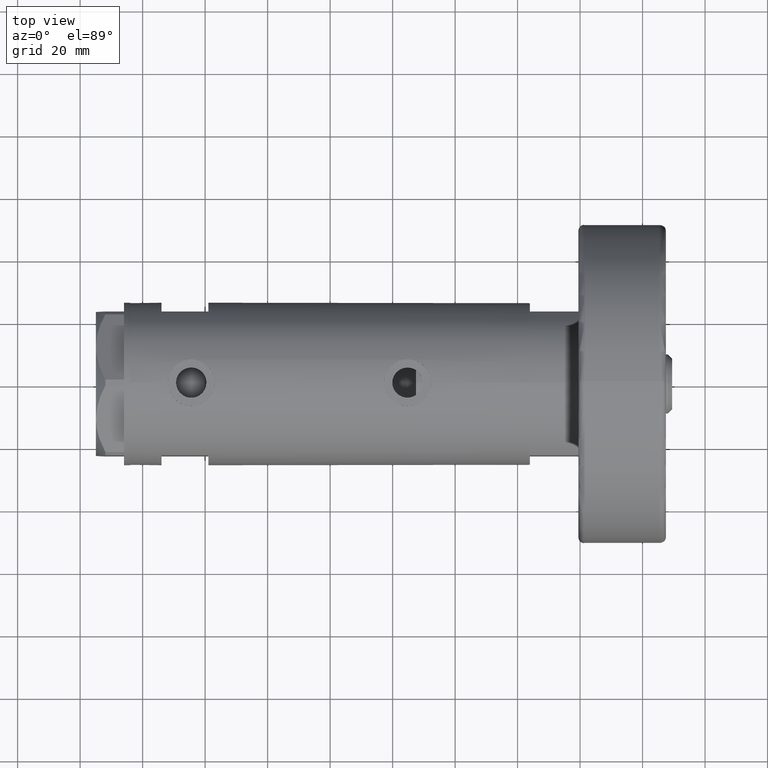
[diagram: clean part render]
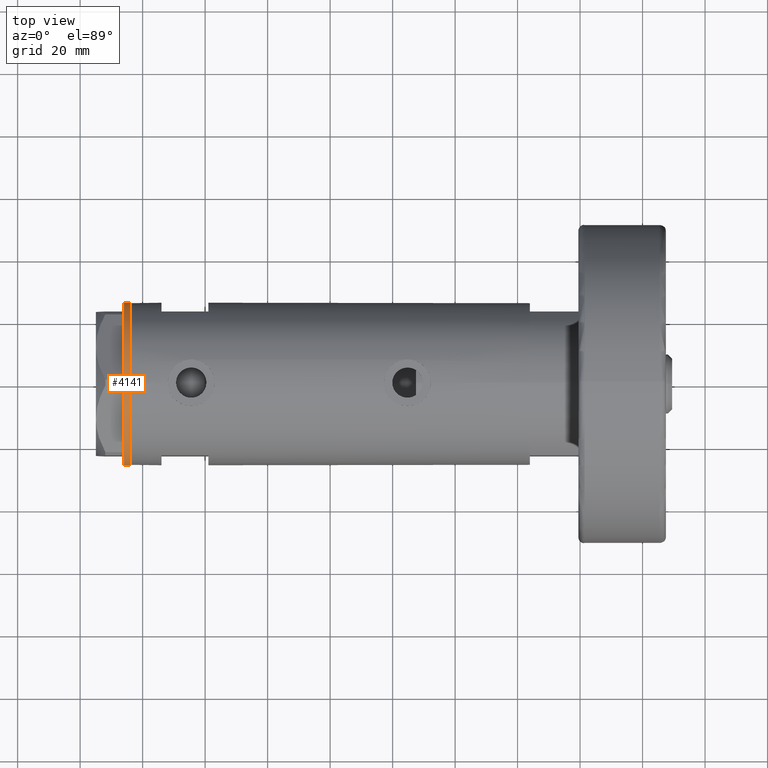
[diagram: same view with one face highlighted and labeled with its STEP entity id]
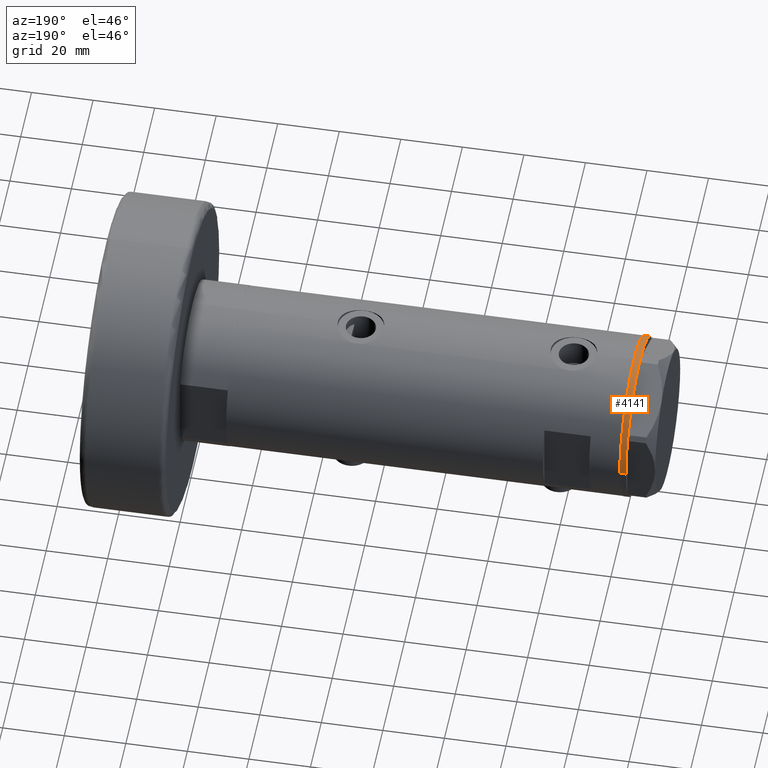
[diagram: same view with one face highlighted and labeled with its STEP entity id]
A machine part, top view. The second image highlights one B-rep face of the part: STEP entity #4141.
A second angle (auxiliary view) of the same face is appended — the face is thin or edge-on in the first view.
In plain terms, the highlighted cylindrical surface (partial cylindrical patch) has radius 26 mm, axis along (-1, -0, 0).
Its self-contained STEP definition (entity closure, byte-faithful):
#17 = CARTESIAN_POINT ( 'NONE',  ( -26.00000000000000355, 3.184081677783118585E-15, 0.000000000000000000 ) ) ;
#204 = B_SPLINE_CURVE_WITH_KNOTS ( 'NONE', 3,
 ( #4038, #3646, #1623, #1326 ),
 .UNSPECIFIED., .F., .F.,
 ( 4, 4 ),
 ( 0.000000000000000000, 1.000000000000000000 ),
 .UNSPECIFIED. ) ;
#308 = ORIENTED_EDGE ( 'NONE', *, *, #1981, .T. ) ;
#327 = CARTESIAN_POINT ( 'NONE',  ( 0.000000000000000000, 0.000000000000000000, -2.000000000000000000 ) ) ;
#399 = VERTEX_POINT ( 'NONE', #17 ) ;
#419 = CIRCLE ( 'NONE', #4240, 26.00000000000000355 ) ;
#448 = CARTESIAN_POINT ( 'NONE',  ( -22.99999999999990763, -12.12435565298232021, 0.000000000000000000 ) ) ;
#472 = DIRECTION ( 'NONE',  ( -1.000000000000000000, 0.000000000000000000, 0.000000000000000000 ) ) ;
#476 = CARTESIAN_POINT ( 'NONE',  ( 22.67167229899274616, -12.72773645103814211, 0.000000000000000000 ) ) ;
#505 = CARTESIAN_POINT ( 'NONE',  ( 26.00000000000000355, 0.000000000000000000, -2.000000000000000000 ) ) ;
#552 = DIRECTION ( 'NONE',  ( -1.000000000000000000, 0.000000000000000000, 0.000000000000000000 ) ) ;
#613 = CARTESIAN_POINT ( 'NONE',  ( 0.000000000000000000, 0.000000000000000000, 0.000000000000000000 ) ) ;
#645 = EDGE_CURVE ( 'NONE', #2921, #3982, #1268, .T. ) ;
#650 = ORIENTED_EDGE ( 'NONE', *, *, #1889, .T. ) ;
#710 = CARTESIAN_POINT ( 'NONE',  ( -0.3132930502238524539, -25.99811238272274139, 0.000000000000000000 ) ) ;
#778 = ORIENTED_EDGE ( 'NONE', *, *, #2307, .T. ) ;
#936 = DIRECTION ( 'NONE',  ( 1.000000000000000000, 0.000000000000000000, 0.000000000000000000 ) ) ;
#1012 = EDGE_CURVE ( 'NONE', #1127, #4639, #4734, .T. ) ;
#1077 = DIRECTION ( 'NONE',  ( 0.000000000000000000, 0.000000000000000000, -1.000000000000000000 ) ) ;
#1104 = AXIS2_PLACEMENT_3D ( 'NONE', #1608, #4446, #2899 ) ;
#1119 = CARTESIAN_POINT ( 'NONE',  ( 0.3132930502243174709, -25.99811238272273428, 0.000000000000000000 ) ) ;
#1127 = VERTEX_POINT ( 'NONE', #1338 ) ;
#1130 = EDGE_CURVE ( 'NONE', #4350, #399, #4972, .T. ) ;
#1180 = CIRCLE ( 'NONE', #4738, 26.00000000000000355 ) ;
#1208 = DIRECTION ( 'NONE',  ( 0.000000000000000000, 0.000000000000000000, -1.000000000000000000 ) ) ;
#1268 = B_SPLINE_CURVE_WITH_KNOTS ( 'NONE', 3,
 ( #1119, #2726, #5198, #710 ),
 .UNSPECIFIED., .F., .F.,
 ( 4, 4 ),
 ( 0.000000000000000000, 1.000000000000000000 ),
 .UNSPECIFIED. ) ;
#1326 = CARTESIAN_POINT ( 'NONE',  ( -22.67167229899264669, -12.72773645103832507, 0.000000000000000000 ) ) ;
#1338 = CARTESIAN_POINT ( 'NONE',  ( -0.9999999999997406519, -25.98076211353317433, 0.000000000000000000 ) ) ;
#1401 = DIRECTION ( 'NONE',  ( 0.000000000000000000, 0.000000000000000000, -1.000000000000000000 ) ) ;
#1433 = CARTESIAN_POINT ( 'NONE',  ( 22.67167229899274616, -12.72773645103814211, 0.000000000000000000 ) ) ;
#1435 = CARTESIAN_POINT ( 'NONE',  ( 0.000000000000000000, 0.000000000000000000, 0.000000000000000000 ) ) ;
#1474 = DIRECTION ( 'NONE',  ( -1.000000000000000000, 0.000000000000000000, 0.000000000000000000 ) ) ;
#1561 = ORIENTED_EDGE ( 'NONE', *, *, #4282, .T. ) ;
#1608 = CARTESIAN_POINT ( 'NONE',  ( 0.000000000000000000, 0.000000000000000000, 0.000000000000000000 ) ) ;
#1617 = CIRCLE ( 'NONE', #3502, 26.00000000000000355 ) ;
#1623 = CARTESIAN_POINT ( 'NONE',  ( -22.56942594318098116, -12.90986591935703665, 0.000000000000000000 ) ) ;
#1666 = VERTEX_POINT ( 'NONE', #448 ) ;
#1691 = AXIS2_PLACEMENT_3D ( 'NONE', #3326, #3000, #936 ) ;
#1707 = EDGE_CURVE ( 'NONE', #3982, #1127, #4905, .T. ) ;
#1728 = ORIENTED_EDGE ( 'NONE', *, *, #3110, .T. ) ;
#1743 = CARTESIAN_POINT ( 'NONE',  ( -26.00000000000000355, 3.184081677783118585E-15, -2.000000000000000000 ) ) ;
#1764 = VERTEX_POINT ( 'NONE', #2908 ) ;
#1868 = VERTEX_POINT ( 'NONE', #4760 ) ;
#1884 = AXIS2_PLACEMENT_3D ( 'NONE', #5033, #1401, #3007 ) ;
#1889 = EDGE_CURVE ( 'NONE', #1666, #399, #1180, .T. ) ;
#1897 = ORIENTED_EDGE ( 'NONE', *, *, #1130, .F. ) ;
#1907 = ORIENTED_EDGE ( 'NONE', *, *, #3920, .T. ) ;
#1981 = EDGE_CURVE ( 'NONE', #1868, #1764, #204, .T. ) ;
#2052 = AXIS2_PLACEMENT_3D ( 'NONE', #4613, #4679, #4260 ) ;
#2075 = EDGE_CURVE ( 'NONE', #3360, #3889, #419, .T. ) ;
#2116 = CARTESIAN_POINT ( 'NONE',  ( 22.35837924876884131, -13.27037593168418717, 0.000000000000000000 ) ) ;
#2157 = ORIENTED_EDGE ( 'NONE', *, *, #645, .T. ) ;
#2186 = DIRECTION ( 'NONE',  ( -1.000000000000000000, 0.000000000000000000, 0.000000000000000000 ) ) ;
#2246 = DIRECTION ( 'NONE',  ( -1.000000000000000000, 0.000000000000000000, 0.000000000000000000 ) ) ;
#2271 = DIRECTION ( 'NONE',  ( -0.000000000000000000, -0.000000000000000000, 1.000000000000000000 ) ) ;
#2306 = DIRECTION ( 'NONE',  ( -1.000000000000000000, 0.000000000000000000, 0.000000000000000000 ) ) ;
#2307 = EDGE_CURVE ( 'NONE', #4198, #2404, #4369, .T. ) ;
#2314 = AXIS2_PLACEMENT_3D ( 'NONE', #2965, #4194, #2186 ) ;
#2404 = VERTEX_POINT ( 'NONE', #3875 ) ;
#2533 = CARTESIAN_POINT ( 'NONE',  ( 22.56942594318113748, -12.90986591935675065, 0.000000000000000000 ) ) ;
#2566 = CARTESIAN_POINT ( 'NONE',  ( 22.46498481720470863, -13.09076325594764079, 0.000000000000000000 ) ) ;
#2573 = CARTESIAN_POINT ( 'NONE',  ( 22.00000000000017053, -13.85640646055075464, 0.000000000000000000 ) ) ;
#2590 = ORIENTED_EDGE ( 'NONE', *, *, #4556, .T. ) ;
#2609 = ORIENTED_EDGE ( 'NONE', *, *, #4969, .T. ) ;
#2625 = ORIENTED_EDGE ( 'NONE', *, *, #3267, .T. ) ;
#2716 = AXIS2_PLACEMENT_3D ( 'NONE', #327, #1077, #3443 ) ;
#2726 = CARTESIAN_POINT ( 'NONE',  ( 0.1044411259767168837, -26.00062917530480888, 0.000000000000000000 ) ) ;
#2759 = EDGE_CURVE ( 'NONE', #3889, #2921, #4068, .T. ) ;
#2786 = EDGE_LOOP ( 'NONE', ( #1897, #2949, #1561, #1907, #2625, #778, #2590, #5121, #3833, #2157, #3367, #5192, #1728, #308, #2609, #650 ) ) ;
#2816 = CARTESIAN_POINT ( 'NONE',  ( -0.3132930502238524539, -25.99811238272274139, 0.000000000000000000 ) ) ;
#2899 = DIRECTION ( 'NONE',  ( -1.000000000000000000, 0.000000000000000000, 0.000000000000000000 ) ) ;
#2908 = CARTESIAN_POINT ( 'NONE',  ( -22.67167229899264669, -12.72773645103832507, 0.000000000000000000 ) ) ;
#2921 = VERTEX_POINT ( 'NONE', #3449 ) ;
#2924 = CARTESIAN_POINT ( 'NONE',  ( 26.00000000000000355, 0.000000000000000000, 0.000000000000000000 ) ) ;
#2949 = ORIENTED_EDGE ( 'NONE', *, *, #4381, .F. ) ;
#2965 = CARTESIAN_POINT ( 'NONE',  ( 0.000000000000000000, 0.000000000000000000, 0.000000000000000000 ) ) ;
#3000 = DIRECTION ( 'NONE',  ( -0.000000000000000000, -0.000000000000000000, 1.000000000000000000 ) ) ;
#3007 = DIRECTION ( 'NONE',  ( -1.000000000000000000, 0.000000000000000000, 0.000000000000000000 ) ) ;
#3110 = EDGE_CURVE ( 'NONE', #4639, #1868, #5107, .T. ) ;
#3138 = CIRCLE ( 'NONE', #2716, 26.00000000000000355 ) ;
#3162 = DIRECTION ( 'NONE',  ( 0.000000000000000000, 0.000000000000000000, -1.000000000000000000 ) ) ;
#3267 = EDGE_CURVE ( 'NONE', #4483, #4198, #1617, .T. ) ;
#3326 = CARTESIAN_POINT ( 'NONE',  ( 0.000000000000000000, 0.000000000000000000, -2.000000000000000000 ) ) ;
#3360 = VERTEX_POINT ( 'NONE', #2573 ) ;
#3367 = ORIENTED_EDGE ( 'NONE', *, *, #1707, .T. ) ;
#3371 = DIRECTION ( 'NONE',  ( 0.000000000000000000, 0.000000000000000000, -1.000000000000000000 ) ) ;
#3407 = AXIS2_PLACEMENT_3D ( 'NONE', #1435, #4605, #552 ) ;
#3443 = DIRECTION ( 'NONE',  ( -1.000000000000000000, 0.000000000000000000, 0.000000000000000000 ) ) ;
#3449 = CARTESIAN_POINT ( 'NONE',  ( 0.3132930502243174709, -25.99811238272273428, 0.000000000000000000 ) ) ;
#3502 = AXIS2_PLACEMENT_3D ( 'NONE', #4112, #3701, #472 ) ;
#3600 = VERTEX_POINT ( 'NONE', #2924 ) ;
#3646 = CARTESIAN_POINT ( 'NONE',  ( -22.46498481720448481, -13.09076325594801915, 0.000000000000000000 ) ) ;
#3651 = AXIS2_PLACEMENT_3D ( 'NONE', #3997, #1208, #4091 ) ;
#3701 = DIRECTION ( 'NONE',  ( 0.000000000000000000, 0.000000000000000000, -1.000000000000000000 ) ) ;
#3833 = ORIENTED_EDGE ( 'NONE', *, *, #2759, .T. ) ;
#3875 = CARTESIAN_POINT ( 'NONE',  ( 22.35837924876884131, -13.27037593168418717, 0.000000000000000000 ) ) ;
#3889 = VERTEX_POINT ( 'NONE', #4807 ) ;
#3920 = EDGE_CURVE ( 'NONE', #3600, #4483, #4658, .T. ) ;
#3982 = VERTEX_POINT ( 'NONE', #2816 ) ;
#3985 = AXIS2_PLACEMENT_3D ( 'NONE', #613, #3371, #2246 ) ;
#3997 = CARTESIAN_POINT ( 'NONE',  ( 0.000000000000000000, 0.000000000000000000, 0.000000000000000000 ) ) ;
#4038 = CARTESIAN_POINT ( 'NONE',  ( -22.35837924876856064, -13.27037593168466501, 0.000000000000000000 ) ) ;
#4056 = VERTEX_POINT ( 'NONE', #505 ) ;
#4059 = CARTESIAN_POINT ( 'NONE',  ( 23.00000000000007461, -12.12435565298200224, 0.000000000000000000 ) ) ;
#4068 = CIRCLE ( 'NONE', #1884, 26.00000000000000355 ) ;
#4091 = DIRECTION ( 'NONE',  ( -1.000000000000000000, 0.000000000000000000, 0.000000000000000000 ) ) ;
#4112 = CARTESIAN_POINT ( 'NONE',  ( 0.000000000000000000, 0.000000000000000000, 0.000000000000000000 ) ) ;
#4115 = CYLINDRICAL_SURFACE ( 'NONE', #1691, 26.00000000000000355 ) ;
#4141 = ADVANCED_FACE ( 'NONE', ( #4561 ), #4115, .T. ) ;
#4194 = DIRECTION ( 'NONE',  ( 0.000000000000000000, 0.000000000000000000, -1.000000000000000000 ) ) ;
#4198 = VERTEX_POINT ( 'NONE', #476 ) ;
#4208 = DIRECTION ( 'NONE',  ( -0.000000000000000000, -0.000000000000000000, 1.000000000000000000 ) ) ;
#4240 = AXIS2_PLACEMENT_3D ( 'NONE', #5178, #5131, #1474 ) ;
#4260 = DIRECTION ( 'NONE',  ( -1.000000000000000000, 0.000000000000000000, 0.000000000000000000 ) ) ;
#4261 = CIRCLE ( 'NONE', #2052, 26.00000000000000355 ) ;
#4282 = EDGE_CURVE ( 'NONE', #4056, #3600, #5116, .T. ) ;
#4286 = CARTESIAN_POINT ( 'NONE',  ( 26.00000000000000355, 0.000000000000000000, -2.000000000000000000 ) ) ;
#4350 = VERTEX_POINT ( 'NONE', #5056 ) ;
#4369 = B_SPLINE_CURVE_WITH_KNOTS ( 'NONE', 3,
 ( #1433, #2533, #2566, #2116 ),
 .UNSPECIFIED., .F., .F.,
 ( 4, 4 ),
 ( 0.000000000000000000, 1.000000000000000000 ),
 .UNSPECIFIED. ) ;
#4381 = EDGE_CURVE ( 'NONE', #4056, #4350, #3138, .T. ) ;
#4446 = DIRECTION ( 'NONE',  ( 0.000000000000000000, 0.000000000000000000, -1.000000000000000000 ) ) ;
#4483 = VERTEX_POINT ( 'NONE', #4059 ) ;
#4556 = EDGE_CURVE ( 'NONE', #2404, #3360, #4918, .T. ) ;
#4561 = FACE_OUTER_BOUND ( 'NONE', #2786, .T. ) ;
#4605 = DIRECTION ( 'NONE',  ( 0.000000000000000000, 0.000000000000000000, -1.000000000000000000 ) ) ;
#4613 = CARTESIAN_POINT ( 'NONE',  ( 0.000000000000000000, 0.000000000000000000, 0.000000000000000000 ) ) ;
#4639 = VERTEX_POINT ( 'NONE', #5020 ) ;
#4658 = CIRCLE ( 'NONE', #3651, 26.00000000000000355 ) ;
#4679 = DIRECTION ( 'NONE',  ( 0.000000000000000000, 0.000000000000000000, -1.000000000000000000 ) ) ;
#4734 = CIRCLE ( 'NONE', #1104, 26.00000000000000355 ) ;
#4738 = AXIS2_PLACEMENT_3D ( 'NONE', #4784, #3162, #2306 ) ;
#4760 = CARTESIAN_POINT ( 'NONE',  ( -22.35837924876856064, -13.27037593168466501, 0.000000000000000000 ) ) ;
#4784 = CARTESIAN_POINT ( 'NONE',  ( 0.000000000000000000, 0.000000000000000000, 0.000000000000000000 ) ) ;
#4807 = CARTESIAN_POINT ( 'NONE',  ( 1.000000000000106803, -25.98076211353316367, 0.000000000000000000 ) ) ;
#4828 = VECTOR ( 'NONE', #2271, 1000.000000000000000 ) ;
#4905 = CIRCLE ( 'NONE', #3985, 26.00000000000000355 ) ;
#4918 = CIRCLE ( 'NONE', #2314, 26.00000000000000355 ) ;
#4969 = EDGE_CURVE ( 'NONE', #1764, #1666, #4261, .T. ) ;
#4972 = LINE ( 'NONE', #1743, #5241 ) ;
#5020 = CARTESIAN_POINT ( 'NONE',  ( -21.99999999999998224, -13.85640646055105485, 0.000000000000000000 ) ) ;
#5033 = CARTESIAN_POINT ( 'NONE',  ( 0.000000000000000000, 0.000000000000000000, 0.000000000000000000 ) ) ;
#5056 = CARTESIAN_POINT ( 'NONE',  ( -26.00000000000000355, 3.184081677783118585E-15, -2.000000000000000000 ) ) ;
#5107 = CIRCLE ( 'NONE', #3407, 26.00000000000000355 ) ;
#5116 = LINE ( 'NONE', #4286, #4828 ) ;
#5121 = ORIENTED_EDGE ( 'NONE', *, *, #2075, .T. ) ;
#5131 = DIRECTION ( 'NONE',  ( 0.000000000000000000, 0.000000000000000000, -1.000000000000000000 ) ) ;
#5178 = CARTESIAN_POINT ( 'NONE',  ( 0.000000000000000000, 0.000000000000000000, 0.000000000000000000 ) ) ;
#5192 = ORIENTED_EDGE ( 'NONE', *, *, #1012, .T. ) ;
#5198 = CARTESIAN_POINT ( 'NONE',  ( -0.1044411259762646482, -26.00062917530481243, 0.000000000000000000 ) ) ;
#5241 = VECTOR ( 'NONE', #4208, 1000.000000000000000 ) ;